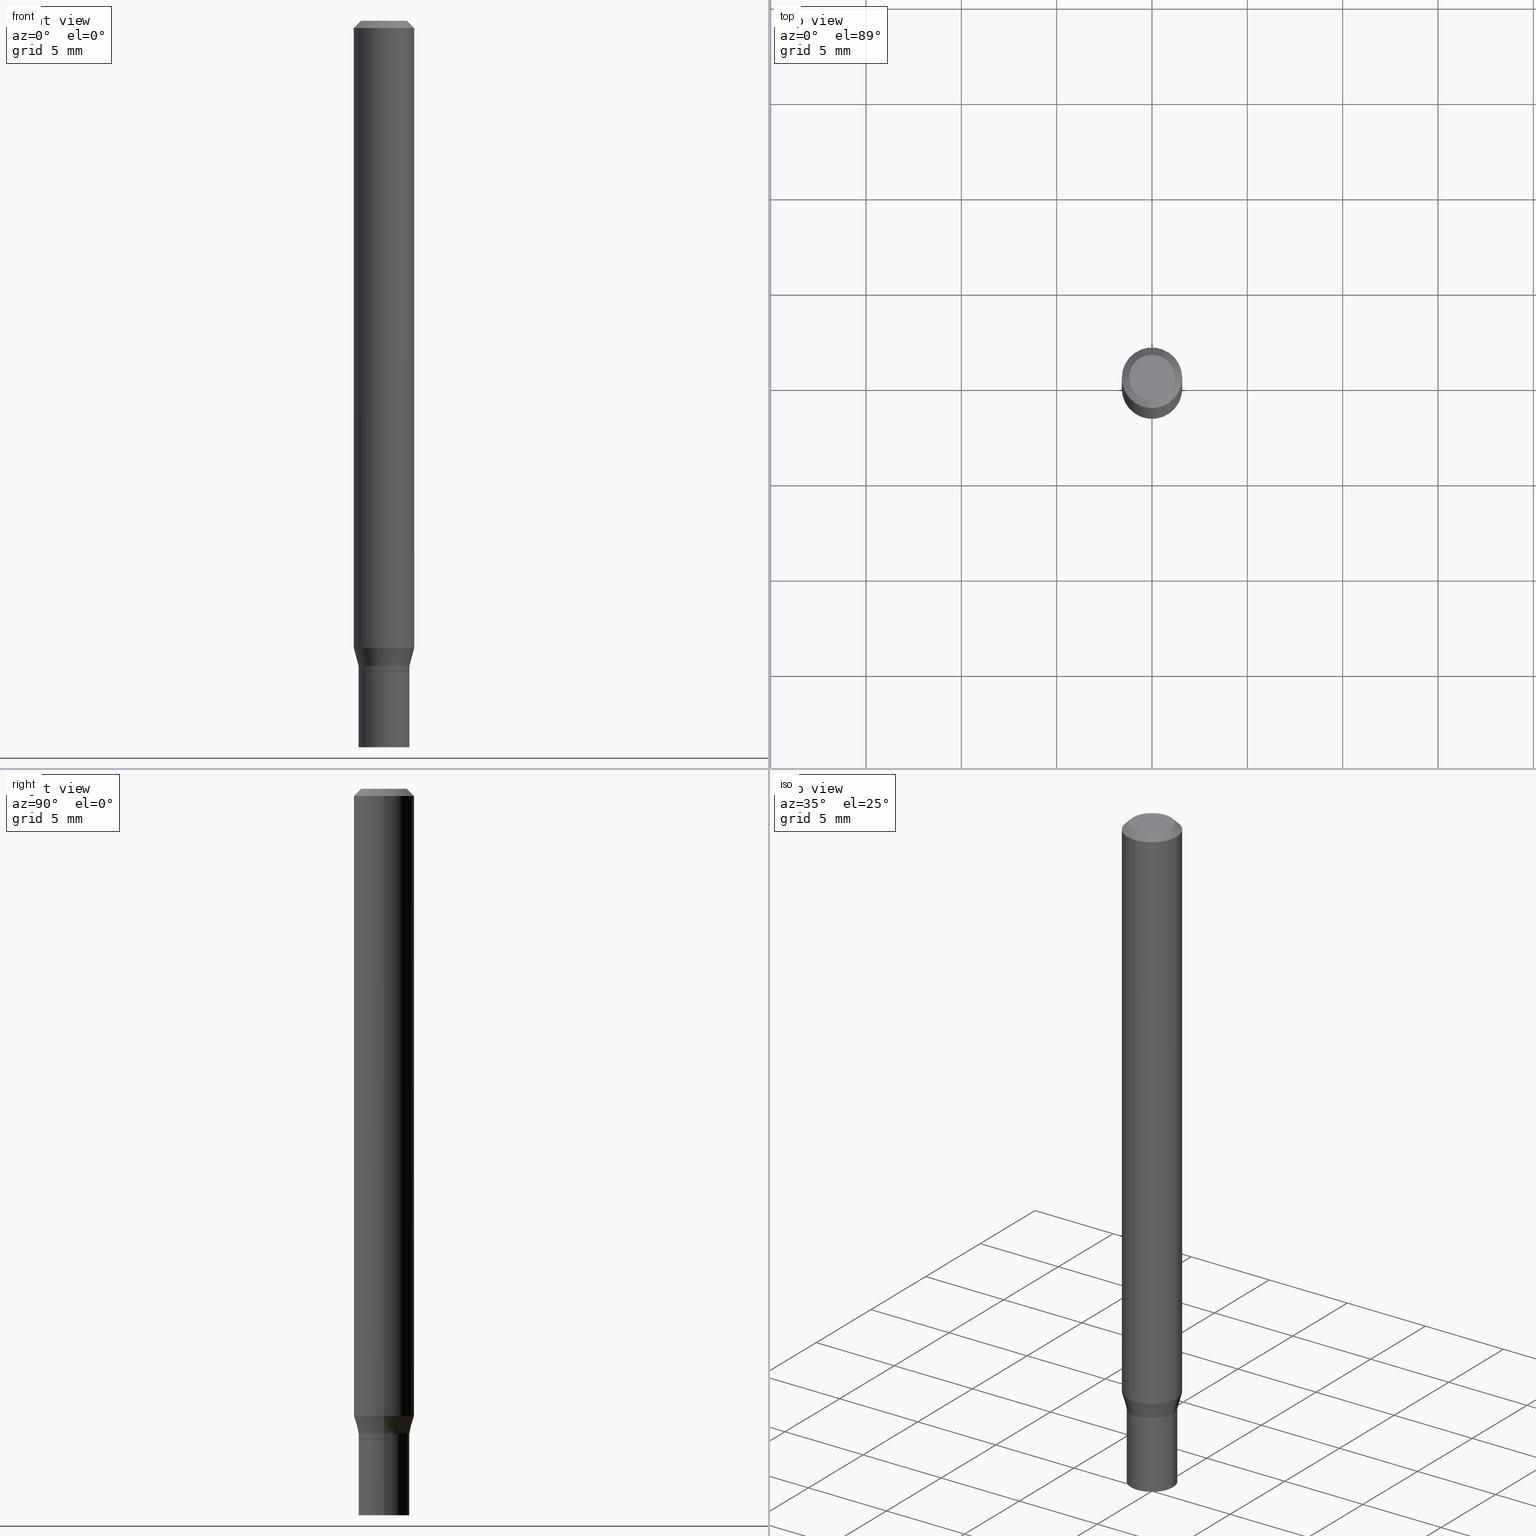
[diagram: canonical four-view strip — front | top / right | iso, engineering-drawing reading convention]
A machine part, canonical four-view strip (front | top / right | iso — engineering-drawing reading convention). The complete STEP part file that produces these views, byte-faithful:
ISO-10303-21;
HEADER;
FILE_DESCRIPTION (( 'STEP AP203' ),
    '1' );
FILE_NAME ('02432.STEP',
    '2024-03-18T20:34:04',
    ( '' ),
    ( '' ),
    'SwSTEP 2.0',
    'SolidWorks 2023',
    '' );
FILE_SCHEMA (( 'CONFIG_CONTROL_DESIGN' ));
ENDSEC;

DATA;
#1 = DIRECTION ( 'NONE',  ( -2.445468806185136597E-29, 3.491481338843145583E-15, 1.000000000000000000 ) ) ;
#2 = DIRECTION ( 'NONE',  ( -2.445468806185136877E-29, 3.491481338843145188E-15, 1.000000000000000000 ) ) ;
#3 = CIRCLE ( 'NONE', #399, 0.05249999999999992867 ) ;
#4 = ORIENTED_EDGE ( 'NONE', *, *, #116, .T. ) ;
#5 = ADVANCED_FACE ( 'NONE', ( #97 ), #141, .T. ) ;
#6 = CARTESIAN_POINT ( 'NONE',  ( 3.668203209277705088E-31, -5.237222008264718399E-17, -0.01499999999999999944 ) ) ;
#7 = DIRECTION ( 'NONE',  ( 1.000000000000000000, -6.982962677686261189E-15, 0.000000000000000000 ) ) ;
#8 = CYLINDRICAL_SURFACE ( 'NONE', #14, 0.06250000000000000000 ) ;
#9 = FACE_OUTER_BOUND ( 'NONE', #178, .T. ) ;
#10 = ORIENTED_EDGE ( 'NONE', *, *, #209, .F. ) ;
#11 = DIRECTION ( 'NONE',  ( -2.445468806185136597E-29, 3.491481338843145583E-15, 1.000000000000000000 ) ) ;
#12 = ORIENTED_EDGE ( 'NONE', *, *, #263, .T. ) ;
#13 = CARTESIAN_POINT ( 'NONE',  ( 3.668203209277705088E-31, -5.237222008264718399E-17, -0.01499999999999999944 ) ) ;
#14 = AXIS2_PLACEMENT_3D ( 'NONE', #298, #445, #416 ) ;
#15 = CIRCLE ( 'NONE', #378, 0.05199999999999999067 ) ;
#16 = DIRECTION ( 'NONE',  ( -2.445468806185136597E-29, 3.491481338843145583E-15, 1.000000000000000000 ) ) ;
#17 = ORIENTED_EDGE ( 'NONE', *, *, #55, .F. ) ;
#18 = CARTESIAN_POINT ( 'NONE',  ( 3.316907271900976096E-16, 0.04749999999999999362, -2.653275547260257586E-16 ) ) ;
#19 = ORIENTED_EDGE ( 'NONE', *, *, #361, .F. ) ;
#20 = CARTESIAN_POINT ( 'NONE',  ( 3.257364449838602072E-29, -4.650653143339070101E-15, -1.332000000000000073 ) ) ;
#21 = DIMENSIONAL_EXPONENTS ( 1.000000000000000000, 0.000000000000000000, 0.000000000000000000, 0.000000000000000000, 0.000000000000000000, 0.000000000000000000, 0.000000000000000000 ) ;
#22 = DIRECTION ( 'NONE',  ( -1.000000000000000000, 6.982962677686266711E-15, 0.000000000000000000 ) ) ;
#23 = DIRECTION ( 'NONE',  ( -1.000000000000000000, 6.982962677686265922E-15, -4.876176775795935793E-29 ) ) ;
#24 = CALENDAR_DATE ( 2024, 18, 3 ) ;
#25 = CIRCLE ( 'NONE', #295, 0.06250000000000000000 ) ;
#26 = DIRECTION ( 'NONE',  ( 1.000000000000000000, -6.982962677686266711E-15, 4.876176775795935793E-29 ) ) ;
#27 = CARTESIAN_POINT ( 'NONE',  ( 3.666055405785617499E-16, 0.05249999999999530736, -1.342000000000000304 ) ) ;
#28 = PERSON ( 'UNSPECIFIED', 'UNSPECIFIED', 'UNSPECIFIED', ('UNSPECIFIED'), ('UNSPECIFIED'), ('UNSPECIFIED') ) ;
#29 = CARTESIAN_POINT ( 'NONE',  ( 3.281819137900453057E-29, -4.685567956727500961E-15, -1.342000000000000082 ) ) ;
#30 = EDGE_CURVE ( 'NONE', #112, #270, #57, .T. ) ;
#31 = CC_DESIGN_PERSON_AND_ORGANIZATION_ASSIGNMENT ( #388, #34, ( #254 ) ) ;
#32 = PERSON_AND_ORGANIZATION ( #28, #44 ) ;
#33 = ORIENTED_EDGE ( 'NONE', *, *, #331, .F. ) ;
#34 = PERSON_AND_ORGANIZATION_ROLE ( 'creator' ) ;
#35 = CIRCLE ( 'NONE', #222, 0.05249999999999999806 ) ;
#36 = CARTESIAN_POINT ( 'NONE',  ( 3.280596403497361377E-29, -4.683822216058081035E-15, -1.341500000000000137 ) ) ;
#37 = ORIENTED_EDGE ( 'NONE', *, *, #439, .F. ) ;
#38 = ORIENTED_EDGE ( 'NONE', *, *, #144, .T. ) ;
#39 = EDGE_CURVE ( 'NONE', #112, #311, #52, .T. ) ;
#40 = CALENDAR_DATE ( 2024, 18, 3 ) ;
#41 = CARTESIAN_POINT ( 'NONE',  ( 0.05249999999999999806, -5.603827548843247337E-15, -1.500000000000000222 ) ) ;
#42 = APPROVAL ( #67, 'UNSPECIFIED' ) ;
#43 = CIRCLE ( 'NONE', #265, 0.05249999999999991479 ) ;
#44 = ORGANIZATION ( 'UNSPECIFIED', 'UNSPECIFIED', '' ) ;
#45 = EDGE_CURVE ( 'NONE', #215, #151, #194, .T. ) ;
#46 = DIRECTION ( 'NONE',  ( 2.438088387897960049E-29, -3.491481338843145188E-15, -1.000000000000000000 ) ) ;
#47 = CIRCLE ( 'NONE', #423, 0.05249999999999999806 ) ;
#48 = CARTESIAN_POINT ( 'NONE',  ( 0.05249999999999991479, -3.666055405785284205E-16, 2.559992807292862157E-30 ) ) ;
#49 = ORIENTED_EDGE ( 'NONE', *, *, #69, .F. ) ;
#50 = FACE_OUTER_BOUND ( 'NONE', #182, .T. ) ;
#51 = CARTESIAN_POINT ( 'NONE',  ( 3.281819137900453057E-29, -4.685567956727500961E-15, -1.342000000000000082 ) ) ;
#52 = LINE ( 'NONE', #302, #251 ) ;
#53 = EDGE_LOOP ( 'NONE', ( #326, #299 ) ) ;
#54 = CYLINDRICAL_SURFACE ( 'NONE', #137, 0.05249999999999991479 ) ;
#55 = EDGE_CURVE ( 'NONE', #282, #311, #227, .T. ) ;
#56 = DIRECTION ( 'NONE',  ( 1.000000000000000000, -6.982962677686265922E-15, 4.876176775795935232E-29 ) ) ;
#57 = CIRCLE ( 'NONE', #398, 0.05199999999999999067 ) ;
#58 = CC_DESIGN_APPROVAL ( #42, ( #448 ) ) ;
#59 = CARTESIAN_POINT ( 'NONE',  ( -0.04749999999999999362, 3.578768372314206562E-16, -1.989643822619551895E-16 ) ) ;
#60 = FACE_OUTER_BOUND ( 'NONE', #53, .T. ) ;
#61 = EDGE_LOOP ( 'NONE', ( #89, #4, #38, #257 ) ) ;
#62 =( NAMED_UNIT ( * ) SI_UNIT ( $, .STERADIAN. ) SOLID_ANGLE_UNIT ( ) );
#63 = ADVANCED_FACE ( 'NONE', ( #333 ), #377, .T. ) ;
#64 = COORDINATED_UNIVERSAL_TIME_OFFSET ( 5, 0, .BEHIND. ) ;
#65 = AXIS2_PLACEMENT_3D ( 'NONE', #6, #297, #441 ) ;
#66 = LOCAL_TIME ( 16, 34, 4.000000000000000000, #64 ) ;
#67 = APPROVAL_STATUS ( 'not_yet_approved' ) ;
#68 = ORIENTED_EDGE ( 'NONE', *, *, #188, .F. ) ;
#69 = EDGE_CURVE ( 'NONE', #431, #287, #152, .T. ) ;
#70 = CARTESIAN_POINT ( 'NONE',  ( 3.281819137900453057E-29, -4.685567956727500961E-15, -1.342000000000000082 ) ) ;
#71 = PERSON_AND_ORGANIZATION_ROLE ( 'creator' ) ;
#72 = VERTEX_POINT ( 'NONE', #267 ) ;
#73 = CIRCLE ( 'NONE', #328, 0.05249999999999999806 ) ;
#74 = VECTOR ( 'NONE', #344, 39.37007874015748143 ) ;
#75 = EDGE_CURVE ( 'NONE', #270, #282, #153, .T. ) ;
#76 = SHAPE_DEFINITION_REPRESENTATION ( #189, #160 ) ;
#77 = ORIENTED_EDGE ( 'NONE', *, *, #242, .F. ) ;
#78 = ADVANCED_FACE ( 'NONE', ( #336 ), #8, .T. ) ;
#79 = PLANE ( 'NONE',  #335 ) ;
#80 = ADVANCED_FACE ( 'NONE', ( #94 ), #173, .F. ) ;
#81 = DIRECTION ( 'NONE',  ( -0.7071067811865522357, 2.468850131082306364E-15, -0.7071067811865427988 ) ) ;
#82 = DIRECTION ( 'NONE',  ( -2.445468806185136597E-29, 3.491481338843145583E-15, 1.000000000000000000 ) ) ;
#83 = ORIENTED_EDGE ( 'NONE', *, *, #30, .T. ) ;
#84 = CONICAL_SURFACE ( 'NONE', #413, 0.05249999999999992867, 0.2617993877991501295 ) ;
#85 = ORIENTED_EDGE ( 'NONE', *, *, #150, .T. ) ;
#86 = LINE ( 'NONE', #274, #130 ) ;
#87 = CARTESIAN_POINT ( 'NONE',  ( -0.05249999999999992867, -4.277618207065018355E-15, -1.332000000000000073 ) ) ;
#88 = DIRECTION ( 'NONE',  ( -2.445468806185136597E-29, 3.491481338843145583E-15, 1.000000000000000000 ) ) ;
#89 = ORIENTED_EDGE ( 'NONE', *, *, #330, .F. ) ;
#90 = DIRECTION ( 'NONE',  ( -2.445468806185136597E-29, 3.491481338843145583E-15, 1.000000000000000000 ) ) ;
#91 = FACE_OUTER_BOUND ( 'NONE', #315, .T. ) ;
#92 = ORIENTED_EDGE ( 'NONE', *, *, #188, .T. ) ;
#93 = DIRECTION ( 'NONE',  ( -2.445468806185136597E-29, 3.491481338843145583E-15, 1.000000000000000000 ) ) ;
#94 = FACE_OUTER_BOUND ( 'NONE', #105, .T. ) ;
#95 = AXIS2_PLACEMENT_3D ( 'NONE', #70, #221, #259 ) ;
#96 = DIRECTION ( 'NONE',  ( -0.2588190451025214611, 5.211531920934551042E-15, 0.9659258262890682012 ) ) ;
#97 = FACE_OUTER_BOUND ( 'NONE', #321, .T. ) ;
#98 = MECHANICAL_CONTEXT ( 'NONE', #121, 'mechanical' ) ;
#99 = FACE_OUTER_BOUND ( 'NONE', #434, .T. ) ;
#100 = DIRECTION ( 'NONE',  ( -2.438088387897960049E-29, 3.491481338843145188E-15, 1.000000000000000000 ) ) ;
#101 = APPLICATION_CONTEXT ( 'configuration controlled 3d designs of mechanical parts and assemblies' ) ;
#102 = AXIS2_PLACEMENT_3D ( 'NONE', #206, #342, #305 ) ;
#103 = APPROVAL_ROLE ( '' ) ;
#104 = CC_DESIGN_APPROVAL ( #459, ( #433 ) ) ;
#105 = EDGE_LOOP ( 'NONE', ( #329, #341 ) ) ;
#106 = PERSON_AND_ORGANIZATION_ROLE ( 'classification_officer' ) ;
#107 = EDGE_CURVE ( 'NONE', #291, #223, #47, .T. ) ;
#108 = LENGTH_MEASURE_WITH_UNIT ( LENGTH_MEASURE( 0.02539999999999999897 ), #248 );
#109 = ORIENTED_EDGE ( 'NONE', *, *, #233, .F. ) ;
#110 = ORIENTED_EDGE ( 'NONE', *, *, #107, .F. ) ;
#111 = FACE_OUTER_BOUND ( 'NONE', #284, .T. ) ;
#112 = VERTEX_POINT ( 'NONE', #303 ) ;
#113 = CLOSED_SHELL ( 'NONE', ( #294, #196, #63, #241, #346, #301, #78, #373, #268, #462, #228, #340 ) ) ;
#114 = APPROVAL_ROLE ( '' ) ;
#115 = ORIENTED_EDGE ( 'NONE', *, *, #435, .F. ) ;
#116 = EDGE_CURVE ( 'NONE', #118, #205, #348, .T. ) ;
#117 = APPROVAL_DATE_TIME ( #195, #459 ) ;
#118 = VERTEX_POINT ( 'NONE', #327 ) ;
#119 = AXIS2_PLACEMENT_3D ( 'NONE', #13, #90, #309 ) ;
#120 = LOCAL_TIME ( 16, 34, 4.000000000000000000, #181 ) ;
#121 = APPLICATION_CONTEXT ( 'configuration controlled 3d designs of mechanical parts and assemblies' ) ;
#122 = CARTESIAN_POINT ( 'NONE',  ( 3.668203209277705088E-31, -5.237222008264718399E-17, -0.01499999999999999944 ) ) ;
#123 = VERTEX_POINT ( 'NONE', #279 ) ;
#124 = ADVANCED_FACE ( 'NONE', ( #99 ), #139, .T. ) ;
#125 = CARTESIAN_POINT ( 'NONE',  ( 0.06250000000000000000, -4.364351673553916694E-16, 3.047610484872459871E-30 ) ) ;
#126 = EDGE_LOOP ( 'NONE', ( #374, #92 ) ) ;
#127 = DIRECTION ( 'NONE',  ( 1.000000000000000000, -6.982962677686266711E-15, 4.876176775795935793E-29 ) ) ;
#128 = CARTESIAN_POINT ( 'NONE',  ( 0.05249999999999992867, -5.017258683917598472E-15, -1.332000000000000073 ) ) ;
#129 = EDGE_LOOP ( 'NONE', ( #200, #12, #355, #226 ) ) ;
#130 = VECTOR ( 'NONE', #414, 39.37007874015748143 ) ;
#131 = CARTESIAN_POINT ( 'NONE',  ( 3.668203209277705088E-31, -5.237222008264718399E-17, -0.01499999999999999944 ) ) ;
#132 = FACE_OUTER_BOUND ( 'NONE', #368, .T. ) ;
#133 = DIRECTION ( 'NONE',  ( 2.438088387897960049E-29, -3.491481338843145188E-15, -1.000000000000000000 ) ) ;
#134 = CARTESIAN_POINT ( 'NONE',  ( 3.576687321579069994E-29, -5.368277968210015545E-15, -1.500000000000000222 ) ) ;
#135 = ORIENTED_EDGE ( 'NONE', *, *, #415, .T. ) ;
#136 = CARTESIAN_POINT ( 'NONE',  ( -0.05249999999999999806, 3.730349362740525838E-16, -2.582440922383825311E-30 ) ) ;
#137 = AXIS2_PLACEMENT_3D ( 'NONE', #300, #161, #127 ) ;
#138 = DIRECTION ( 'NONE',  ( 2.445468806185136597E-29, -3.491481338843145583E-15, -1.000000000000000000 ) ) ;
#139 = CYLINDRICAL_SURFACE ( 'NONE', #244, 0.05249999999999999806 ) ;
#140 = PERSON_AND_ORGANIZATION ( #28, #44 ) ;
#141 = CYLINDRICAL_SURFACE ( 'NONE', #285, 0.05249999999999999806 ) ;
#142 = CONICAL_SURFACE ( 'NONE', #314, 0.05199999999999999067, 0.7853981633974739252 ) ;
#143 = ORIENTED_EDGE ( 'NONE', *, *, #45, .F. ) ;
#144 = EDGE_CURVE ( 'NONE', #205, #215, #232, .T. ) ;
#145 = DIRECTION ( 'NONE',  ( 1.000000000000000000, -6.982962677686268288E-15, 0.000000000000000000 ) ) ;
#146 = CALENDAR_DATE ( 2024, 18, 3 ) ;
#147 = MANIFOLD_SOLID_BREP ( 'Body-Move/Copy2[1]', #363 ) ;
#148 = EDGE_LOOP ( 'NONE', ( #115, #33, #438, #85 ) ) ;
#149 = AXIS2_PLACEMENT_3D ( 'NONE', #371, #239, #356 ) ;
#150 = EDGE_CURVE ( 'NONE', #287, #151, #260, .T. ) ;
#151 = VERTEX_POINT ( 'NONE', #367 ) ;
#152 = LINE ( 'NONE', #293, #198 ) ;
#153 = LINE ( 'NONE', #407, #454 ) ;
#154 = AXIS2_PLACEMENT_3D ( 'NONE', #201, #16, #169 ) ;
#155 = LOCAL_TIME ( 16, 34, 4.000000000000000000, #288 ) ;
#156 = ORIENTED_EDGE ( 'NONE', *, *, #233, .T. ) ;
#157 = PERSON_AND_ORGANIZATION ( #28, #44 ) ;
#158 = DIRECTION ( 'NONE',  ( 1.000000000000000000, -6.982962677686268288E-15, 0.000000000000000000 ) ) ;
#159 = ORIENTED_EDGE ( 'NONE', *, *, #170, .F. ) ;
#160 = ADVANCED_BREP_SHAPE_REPRESENTATION ( '02432', ( #147, #304, #245 ), #307 ) ;
#161 = DIRECTION ( 'NONE',  ( -2.445468806185136597E-29, 3.491481338843145583E-15, 1.000000000000000000 ) ) ;
#162 = CC_DESIGN_DATE_AND_TIME_ASSIGNMENT ( #218, #351, ( #433 ) ) ;
#163 = CARTESIAN_POINT ( 'NONE',  ( 3.281819137900453057E-29, -4.685567956727500961E-15, -1.342000000000000082 ) ) ;
#164 = VERTEX_POINT ( 'NONE', #370 ) ;
#165 = DIRECTION ( 'NONE',  ( -2.445468806185136597E-29, 3.491481338843145583E-15, 1.000000000000000000 ) ) ;
#166 = DIRECTION ( 'NONE',  ( 1.000000000000000000, -6.982962677686262766E-15, 0.000000000000000000 ) ) ;
#167 = EDGE_CURVE ( 'NONE', #217, #72, #35, .T. ) ;
#168 = CIRCLE ( 'NONE', #154, 0.04749999999999999362 ) ;
#169 = DIRECTION ( 'NONE',  ( 1.000000000000000000, -6.982962677686267499E-15, 4.852736867747366768E-29 ) ) ;
#170 = EDGE_CURVE ( 'NONE', #223, #291, #73, .T. ) ;
#171 = ORIENTED_EDGE ( 'NONE', *, *, #75, .F. ) ;
#172 = CARTESIAN_POINT ( 'NONE',  ( 3.281819137900453057E-29, -4.685567956727500961E-15, -1.342000000000000082 ) ) ;
#173 = PLANE ( 'NONE',  #176 ) ;
#174 = CC_DESIGN_PERSON_AND_ORGANIZATION_ASSIGNMENT ( #32, #71, ( #448 ) ) ;
#175 = CARTESIAN_POINT ( 'NONE',  ( -0.06250000000000000000, -1.842271543109589873E-15, -0.01499999999999999944 ) ) ;
#176 = AXIS2_PLACEMENT_3D ( 'NONE', #27, #133, #23 ) ;
#177 = VECTOR ( 'NONE', #444, 39.37007874015748143 ) ;
#178 = EDGE_LOOP ( 'NONE', ( #319, #411, #77, #262 ) ) ;
#179 = DATE_AND_TIME ( #24, #323 ) ;
#180 = CARTESIAN_POINT ( 'NONE',  ( 0.000000000000000000, 0.000000000000000000, 0.000000000000000000 ) ) ;
#181 = COORDINATED_UNIVERSAL_TIME_OFFSET ( 5, 0, .BEHIND. ) ;
#182 = EDGE_LOOP ( 'NONE', ( #425, #357, #354, #420 ) ) ;
#183 = CONICAL_SURFACE ( 'NONE', #447, 0.05249999999999992867, 0.2617993877991501295 ) ;
#184 = DIRECTION ( 'NONE',  ( 1.000000000000000000, -6.982962677686267499E-15, 4.852736867747366768E-29 ) ) ;
#185 = ORIENTED_EDGE ( 'NONE', *, *, #435, .T. ) ;
#186 = CARTESIAN_POINT ( 'NONE',  ( -0.05249999999999999806, -4.588360046222057034E-15, -1.342000000000000082 ) ) ;
#187 = FACE_OUTER_BOUND ( 'NONE', #338, .T. ) ;
#188 = EDGE_CURVE ( 'NONE', #123, #431, #412, .T. ) ;
#189 = PRODUCT_DEFINITION_SHAPE ( 'NONE', 'NONE',  #254 ) ;
#190 = ORIENTED_EDGE ( 'NONE', *, *, #39, .T. ) ;
#191 = APPROVAL ( #289, 'UNSPECIFIED' ) ;
#192 = LINE ( 'NONE', #359, #213 ) ;
#193 = CARTESIAN_POINT ( 'NONE',  ( 0.06250000000000000000, -4.956784453192048385E-15, -1.294679491924311199 ) ) ;
#194 = LINE ( 'NONE', #125, #429 ) ;
#195 = DATE_AND_TIME ( #40, #286 ) ;
#196 = ADVANCED_FACE ( 'NONE', ( #111 ), #230, .T. ) ;
#197 = DIRECTION ( 'NONE',  ( 0.7071067811865656694, -2.468850131082446387E-15, 0.7071067811865294761 ) ) ;
#198 = VECTOR ( 'NONE', #81, 39.37007874015748143 ) ;
#199 = AXIS2_PLACEMENT_3D ( 'NONE', #29, #100, #395 ) ;
#200 = ORIENTED_EDGE ( 'NONE', *, *, #220, .F. ) ;
#201 = CARTESIAN_POINT ( 'NONE',  ( 4.865611903635008365E-45, -6.946804277620623666E-31, -1.989643822619527736E-16 ) ) ;
#202 = EDGE_LOOP ( 'NONE', ( #159, #110 ) ) ;
#203 = CARTESIAN_POINT ( 'NONE',  ( 0.05249999999999991479, -5.050427756636607829E-15, -1.341500000000000137 ) ) ;
#204 = DIRECTION ( 'NONE',  ( -0.7071067811865656694, 7.493145998870420424E-15, 0.7071067811865294761 ) ) ;
#205 = VERTEX_POINT ( 'NONE', #397 ) ;
#206 = CARTESIAN_POINT ( 'NONE',  ( 0.000000000000000000, 0.000000000000000000, 0.000000000000000000 ) ) ;
#207 = CIRCLE ( 'NONE', #119, 0.06250000000000000000 ) ;
#208 = LINE ( 'NONE', #278, #74 ) ;
#209 = EDGE_CURVE ( 'NONE', #311, #282, #43, .T. ) ;
#210 = FACE_OUTER_BOUND ( 'NONE', #61, .T. ) ;
#211 = CARTESIAN_POINT ( 'NONE',  ( 3.668203209277704895E-29, -5.237222008264718177E-15, -1.500000000000000222 ) ) ;
#212 = DATE_AND_TIME ( #146, #66 ) ;
#213 = VECTOR ( 'NONE', #2, 39.37007874015748143 ) ;
#214 = ORIENTED_EDGE ( 'NONE', *, *, #394, .T. ) ;
#215 = VERTEX_POINT ( 'NONE', #193 ) ;
#216 = CALENDAR_DATE ( 2024, 18, 3 ) ;
#217 = VERTEX_POINT ( 'NONE', #186 ) ;
#218 = DATE_AND_TIME ( #256, #155 ) ;
#219 = ORIENTED_EDGE ( 'NONE', *, *, #170, .T. ) ;
#220 = EDGE_CURVE ( 'NONE', #164, #287, #192, .T. ) ;
#221 = DIRECTION ( 'NONE',  ( -2.445468806185136597E-29, 3.491481338843145583E-15, 1.000000000000000000 ) ) ;
#222 = AXIS2_PLACEMENT_3D ( 'NONE', #51, #82, #158 ) ;
#223 = VERTEX_POINT ( 'NONE', #41 ) ;
#224 = CC_DESIGN_APPROVAL ( #191, ( #254 ) ) ;
#225 = CC_DESIGN_PERSON_AND_ORGANIZATION_ASSIGNMENT ( #320, #466, ( #448 ) ) ;
#226 = ORIENTED_EDGE ( 'NONE', *, *, #150, .F. ) ;
#227 = CIRCLE ( 'NONE', #322, 0.05249999999999991479 ) ;
#228 = ADVANCED_FACE ( 'NONE', ( #187 ), #142, .T. ) ;
#229 = DIRECTION ( 'NONE',  ( 1.000000000000000000, -6.982962677686265922E-15, 4.876176775795935793E-29 ) ) ;
#230 = CONICAL_SURFACE ( 'NONE', #95, 0.05199999999999999067, 0.7853981633974739252 ) ;
#231 = VECTOR ( 'NONE', #376, 39.37007874015748143 ) ;
#232 = LINE ( 'NONE', #128, #405 ) ;
#233 = EDGE_CURVE ( 'NONE', #151, #287, #207, .T. ) ;
#234 = CARTESIAN_POINT ( 'NONE',  ( 3.281819137900453057E-29, -4.685567956727500961E-15, -1.342000000000000082 ) ) ;
#235 = DIRECTION ( 'NONE',  ( -2.445468806185136597E-29, 3.491481338843145583E-15, 1.000000000000000000 ) ) ;
#236 = CARTESIAN_POINT ( 'NONE',  ( 3.257364449838602072E-29, -4.650653143339070101E-15, -1.332000000000000073 ) ) ;
#237 = DIRECTION ( 'NONE',  ( -2.445468806185136597E-29, 3.491481338843145583E-15, 1.000000000000000000 ) ) ;
#238 = CARTESIAN_POINT ( 'NONE',  ( 0.000000000000000000, 0.000000000000000000, 0.000000000000000000 ) ) ;
#239 = DIRECTION ( 'NONE',  ( -2.445468806185136597E-29, 3.491481338843145583E-15, 1.000000000000000000 ) ) ;
#240 = LINE ( 'NONE', #136, #231 ) ;
#241 = ADVANCED_FACE ( 'NONE', ( #132 ), #450, .T. ) ;
#242 = EDGE_CURVE ( 'NONE', #215, #164, #25, .T. ) ;
#243 = CC_DESIGN_PERSON_AND_ORGANIZATION_ASSIGNMENT ( #430, #106, ( #433 ) ) ;
#244 = AXIS2_PLACEMENT_3D ( 'NONE', #456, #237, #362 ) ;
#245 = AXIS2_PLACEMENT_3D ( 'NONE', #180, #318, #250 ) ;
#246 = CARTESIAN_POINT ( 'NONE',  ( 0.05249999999999999806, -3.666055405785289629E-16, 2.559992807292866011E-30 ) ) ;
#247 = ORIENTED_EDGE ( 'NONE', *, *, #242, .T. ) ;
#248 =( LENGTH_UNIT ( ) NAMED_UNIT ( * ) SI_UNIT ( $, .METRE. ) );
#249 = CARTESIAN_POINT ( 'NONE',  ( 0.05199999999999999067, -5.048682015967186325E-15, -1.342000000000000082 ) ) ;
#250 = DIRECTION ( 'NONE',  ( 1.000000000000000000, 0.000000000000000000, 0.000000000000000000 ) ) ;
#251 = VECTOR ( 'NONE', #204, 39.37007874015748143 ) ;
#252 = APPROVAL_PERSON_ORGANIZATION ( #157, #459, #114 ) ;
#253 = APPROVAL_DATE_TIME ( #212, #191 ) ;
#254 = PRODUCT_DEFINITION ( 'UNKNOWN', '', #448, #386 ) ;
#255 = CARTESIAN_POINT ( 'NONE',  ( 0.000000000000000000, 0.000000000000000000, 0.000000000000000000 ) ) ;
#256 = CALENDAR_DATE ( 2024, 18, 3 ) ;
#257 = ORIENTED_EDGE ( 'NONE', *, *, #263, .F. ) ;
#258 = UNCERTAINTY_MEASURE_WITH_UNIT (LENGTH_MEASURE( 1.000000000000000082E-05 ), #385, 'distance_accuracy_value', 'NONE');
#259 = DIRECTION ( 'NONE',  ( 1.000000000000000000, -6.982962677686258822E-15, 0.000000000000000000 ) ) ;
#260 = CIRCLE ( 'NONE', #343, 0.06250000000000000000 ) ;
#261 = CARTESIAN_POINT ( 'NONE',  ( 3.281819137900453057E-29, -4.685567956727500961E-15, -1.342000000000000082 ) ) ;
#262 = ORIENTED_EDGE ( 'NONE', *, *, #144, .F. ) ;
#263 = EDGE_CURVE ( 'NONE', #164, #215, #387, .T. ) ;
#264 = DIRECTION ( 'NONE',  ( 1.000000000000000000, -6.982962677686262766E-15, 0.000000000000000000 ) ) ;
#265 = AXIS2_PLACEMENT_3D ( 'NONE', #36, #325, #403 ) ;
#266 = EDGE_LOOP ( 'NONE', ( #68, #185, #156, #49 ) ) ;
#267 = CARTESIAN_POINT ( 'NONE',  ( 0.05249999999999999806, -5.052173497306030121E-15, -1.342000000000000082 ) ) ;
#268 = ADVANCED_FACE ( 'NONE', ( #404 ), #79, .F. ) ;
#269 = ORIENTED_EDGE ( 'NONE', *, *, #394, .F. ) ;
#270 = VERTEX_POINT ( 'NONE', #249 ) ;
#271 = DIRECTION ( 'NONE',  ( -2.445468806185136597E-29, 3.491481338843145583E-15, 1.000000000000000000 ) ) ;
#272 = AXIS2_PLACEMENT_3D ( 'NONE', #238, #391, #26 ) ;
#273 = LINE ( 'NONE', #246, #177 ) ;
#274 = CARTESIAN_POINT ( 'NONE',  ( -0.05249999999999991479, 3.730349362740519921E-16, -2.582440922383821458E-30 ) ) ;
#275 = ORIENTED_EDGE ( 'NONE', *, *, #55, .T. ) ;
#276 = CYLINDRICAL_SURFACE ( 'NONE', #102, 0.05249999999999991479 ) ;
#277 = AXIS2_PLACEMENT_3D ( 'NONE', #131, #138, #22 ) ;
#278 = CARTESIAN_POINT ( 'NONE',  ( 0.06250000000000000000, -4.811533449433679005E-16, -0.01499999999999999944 ) ) ;
#279 = CARTESIAN_POINT ( 'NONE',  ( 0.04749999999999999362, -4.035134999187581581E-16, -1.989643822619502098E-16 ) ) ;
#280 = PRODUCT_RELATED_PRODUCT_CATEGORY ( 'detail', '', ( #442 ) ) ;
#281 = DIRECTION ( 'NONE',  ( -1.000000000000000000, 6.982962677686265922E-15, -4.876176775795935793E-29 ) ) ;
#282 = VERTEX_POINT ( 'NONE', #203 ) ;
#283 =( NAMED_UNIT ( * ) PLANE_ANGLE_UNIT ( ) SI_UNIT ( $, .RADIAN. ) );
#284 = EDGE_LOOP ( 'NONE', ( #135, #190, #17, #171 ) ) ;
#285 = AXIS2_PLACEMENT_3D ( 'NONE', #255, #393, #56 ) ;
#286 = LOCAL_TIME ( 16, 34, 4.000000000000000000, #436 ) ;
#287 = VERTEX_POINT ( 'NONE', #175 ) ;
#288 = COORDINATED_UNIVERSAL_TIME_OFFSET ( 5, 0, .BEHIND. ) ;
#289 = APPROVAL_STATUS ( 'not_yet_approved' ) ;
#290 = CIRCLE ( 'NONE', #446, 0.05249999999999999806 ) ;
#291 = VERTEX_POINT ( 'NONE', #453 ) ;
#292 = EDGE_CURVE ( 'NONE', #72, #217, #290, .T. ) ;
#293 = CARTESIAN_POINT ( 'NONE',  ( -0.06250000000000000000, 3.840629472727444916E-16, -0.01499999999999999944 ) ) ;
#294 = ADVANCED_FACE ( 'NONE', ( #91 ), #276, .T. ) ;
#295 = AXIS2_PLACEMENT_3D ( 'NONE', #458, #461, #166 ) ;
#296 = CONICAL_SURFACE ( 'NONE', #277, 0.06250000000000000000, 0.7853981633974549403 ) ;
#297 = DIRECTION ( 'NONE',  ( 2.445468806185136597E-29, -3.491481338843145583E-15, -1.000000000000000000 ) ) ;
#298 = CARTESIAN_POINT ( 'NONE',  ( 0.000000000000000000, 0.000000000000000000, 0.000000000000000000 ) ) ;
#299 = ORIENTED_EDGE ( 'NONE', *, *, #30, .F. ) ;
#300 = CARTESIAN_POINT ( 'NONE',  ( 0.000000000000000000, 0.000000000000000000, 0.000000000000000000 ) ) ;
#301 = ADVANCED_FACE ( 'NONE', ( #210 ), #183, .T. ) ;
#302 = CARTESIAN_POINT ( 'NONE',  ( -0.05199999999999999067, -4.316085734132249325E-15, -1.342000000000000082 ) ) ;
#303 = CARTESIAN_POINT ( 'NONE',  ( -0.05199999999999999067, -4.313436506958138124E-15, -1.342000000000000082 ) ) ;
#304 = MANIFOLD_SOLID_BREP ( 'Body-Move/Copy2[2]', #113 ) ;
#305 = DIRECTION ( 'NONE',  ( 1.000000000000000000, -6.982962677686266711E-15, 4.876176775795935793E-29 ) ) ;
#306 = AXIS2_PLACEMENT_3D ( 'NONE', #419, #88, #264 ) ;
#307 =( GEOMETRIC_REPRESENTATION_CONTEXT ( 3 ) GLOBAL_UNCERTAINTY_ASSIGNED_CONTEXT ( ( #258 ) ) GLOBAL_UNIT_ASSIGNED_CONTEXT ( ( #385, #283, #62 ) ) REPRESENTATION_CONTEXT ( 'NONE', 'WORKASPACE' ) );
#308 = APPROVAL_PERSON_ORGANIZATION ( #460, #191, #103 ) ;
#309 = DIRECTION ( 'NONE',  ( 1.000000000000000000, -6.982962677686266711E-15, 0.000000000000000000 ) ) ;
#310 = DIRECTION ( 'NONE',  ( -2.445468806185136877E-29, 3.491481338843145188E-15, 1.000000000000000000 ) ) ;
#311 = VERTEX_POINT ( 'NONE', #418 ) ;
#312 = LINE ( 'NONE', #48, #364 ) ;
#313 = DIRECTION ( 'NONE',  ( 1.000000000000000000, -6.982962677686259611E-15, 0.000000000000000000 ) ) ;
#314 = AXIS2_PLACEMENT_3D ( 'NONE', #261, #400, #375 ) ;
#315 = EDGE_LOOP ( 'NONE', ( #275, #464, #37, #19 ) ) ;
#316 = DATE_TIME_ROLE ( 'creation_date' ) ;
#317 = CARTESIAN_POINT ( 'NONE',  ( 3.668203209277704895E-29, -5.237222008264718177E-15, -1.500000000000000222 ) ) ;
#318 = DIRECTION ( 'NONE',  ( 0.000000000000000000, 0.000000000000000000, 1.000000000000000000 ) ) ;
#319 = ORIENTED_EDGE ( 'NONE', *, *, #439, .T. ) ;
#320 = PERSON_AND_ORGANIZATION ( #28, #44 ) ;
#321 = EDGE_LOOP ( 'NONE', ( #457, #402, #214, #353 ) ) ;
#322 = AXIS2_PLACEMENT_3D ( 'NONE', #437, #334, #7 ) ;
#323 = LOCAL_TIME ( 16, 34, 4.000000000000000000, #347 ) ;
#324 = DATE_AND_TIME ( #216, #120 ) ;
#325 = DIRECTION ( 'NONE',  ( -2.445468806185136597E-29, 3.491481338843145583E-15, 1.000000000000000000 ) ) ;
#326 = ORIENTED_EDGE ( 'NONE', *, *, #415, .F. ) ;
#327 = CARTESIAN_POINT ( 'NONE',  ( -0.05249999999999992867, -4.176939141525806622E-15, -1.332000000000000073 ) ) ;
#328 = AXIS2_PLACEMENT_3D ( 'NONE', #317, #392, #145 ) ;
#329 = ORIENTED_EDGE ( 'NONE', *, *, #292, .T. ) ;
#330 = EDGE_CURVE ( 'NONE', #118, #164, #452, .T. ) ;
#331 = EDGE_CURVE ( 'NONE', #431, #123, #168, .T. ) ;
#332 = CC_DESIGN_PERSON_AND_ORGANIZATION_ASSIGNMENT ( #428, #349, ( #442 ) ) ;
#333 = FACE_OUTER_BOUND ( 'NONE', #266, .T. ) ;
#334 = DIRECTION ( 'NONE',  ( -2.445468806185136597E-29, 3.491481338843145583E-15, 1.000000000000000000 ) ) ;
#335 = AXIS2_PLACEMENT_3D ( 'NONE', #18, #46, #281 ) ;
#336 = FACE_OUTER_BOUND ( 'NONE', #129, .T. ) ;
#337 = DIRECTION ( 'NONE',  ( 1.000000000000000000, -6.982962677686268288E-15, 0.000000000000000000 ) ) ;
#338 = EDGE_LOOP ( 'NONE', ( #389, #83, #382, #10 ) ) ;
#339 = FACE_OUTER_BOUND ( 'NONE', #202, .T. ) ;
#340 = ADVANCED_FACE ( 'NONE', ( #50 ), #54, .T. ) ;
#341 = ORIENTED_EDGE ( 'NONE', *, *, #167, .T. ) ;
#342 = DIRECTION ( 'NONE',  ( -2.445468806185136597E-29, 3.491481338843145583E-15, 1.000000000000000000 ) ) ;
#343 = AXIS2_PLACEMENT_3D ( 'NONE', #122, #235, #409 ) ;
#344 = DIRECTION ( 'NONE',  ( 0.7071067811865522357, -7.319954787623271823E-15, -0.7071067811865427988 ) ) ;
#345 = PLANE ( 'NONE',  #199 ) ;
#346 = ADVANCED_FACE ( 'NONE', ( #9 ), #84, .T. ) ;
#347 = COORDINATED_UNIVERSAL_TIME_OFFSET ( 5, 0, .BEHIND. ) ;
#348 = CIRCLE ( 'NONE', #149, 0.05249999999999992867 ) ;
#349 = PERSON_AND_ORGANIZATION_ROLE ( 'design_owner' ) ;
#350 = APPROVAL_DATE_TIME ( #324, #42 ) ;
#351 = DATE_TIME_ROLE ( 'classification_date' ) ;
#352 = CARTESIAN_POINT ( 'NONE',  ( 4.865611903635008365E-45, -6.946804277620623666E-31, -1.989643822619527736E-16 ) ) ;
#353 = ORIENTED_EDGE ( 'NONE', *, *, #167, .F. ) ;
#354 = ORIENTED_EDGE ( 'NONE', *, *, #361, .T. ) ;
#355 = ORIENTED_EDGE ( 'NONE', *, *, #45, .T. ) ;
#356 = DIRECTION ( 'NONE',  ( 1.000000000000000000, -6.982962677686259611E-15, 0.000000000000000000 ) ) ;
#357 = ORIENTED_EDGE ( 'NONE', *, *, #209, .T. ) ;
#358 = AXIS2_PLACEMENT_3D ( 'NONE', #352, #1, #184 ) ;
#359 = CARTESIAN_POINT ( 'NONE',  ( -0.06250000000000000000, 4.440892098500626162E-16, -3.074334431409316114E-30 ) ) ;
#360 = APPROVAL_STATUS ( 'not_yet_approved' ) ;
#361 = EDGE_CURVE ( 'NONE', #282, #205, #312, .T. ) ;
#362 = DIRECTION ( 'NONE',  ( 1.000000000000000000, -6.982962677686265922E-15, 4.876176775795935232E-29 ) ) ;
#363 = CLOSED_SHELL ( 'NONE', ( #124, #384, #5, #80 ) ) ;
#364 = VECTOR ( 'NONE', #310, 39.37007874015748143 ) ;
#365 = FACE_OUTER_BOUND ( 'NONE', #148, .T. ) ;
#366 = DIRECTION ( 'NONE',  ( -2.445468806185136877E-29, 3.491481338843145188E-15, 1.000000000000000000 ) ) ;
#367 = CARTESIAN_POINT ( 'NONE',  ( 0.06250000000000000000, -4.888073874380388472E-16, -0.01499999999999999944 ) ) ;
#368 = EDGE_LOOP ( 'NONE', ( #247, #390, #109, #143 ) ) ;
#369 = DIRECTION ( 'NONE',  ( -2.438088387897960049E-29, 3.491481338843145188E-15, 1.000000000000000000 ) ) ;
#370 = CARTESIAN_POINT ( 'NONE',  ( -0.06250000000000000000, -4.076260075986594889E-15, -1.294679491924311199 ) ) ;
#371 = CARTESIAN_POINT ( 'NONE',  ( 3.257364449838602072E-29, -4.650653143339070101E-15, -1.332000000000000073 ) ) ;
#372 = DIRECTION ( 'NONE',  ( 1.000000000000000000, -6.982962677686258822E-15, 0.000000000000000000 ) ) ;
#373 = ADVANCED_FACE ( 'NONE', ( #365 ), #296, .T. ) ;
#374 = ORIENTED_EDGE ( 'NONE', *, *, #331, .T. ) ;
#375 = DIRECTION ( 'NONE',  ( 1.000000000000000000, -6.982962677686258822E-15, 0.000000000000000000 ) ) ;
#376 = DIRECTION ( 'NONE',  ( -2.445468806185136877E-29, 3.491481338843145188E-15, 1.000000000000000000 ) ) ;
#377 = CONICAL_SURFACE ( 'NONE', #65, 0.06250000000000000000, 0.7853981633974549403 ) ;
#378 = AXIS2_PLACEMENT_3D ( 'NONE', #234, #11, #372 ) ;
#379 = DIRECTION ( 'NONE',  ( 1.000000000000000000, -6.982962677686258822E-15, 0.000000000000000000 ) ) ;
#380 = DIRECTION ( 'NONE',  ( 1.000000000000000000, -6.982962677686259611E-15, 0.000000000000000000 ) ) ;
#381 = APPLICATION_PROTOCOL_DEFINITION ( 'international standard', 'config_control_design', 1994, #121 ) ;
#382 = ORIENTED_EDGE ( 'NONE', *, *, #75, .T. ) ;
#383 = DIRECTION ( 'NONE',  ( 1.000000000000000000, -6.982962677686268288E-15, 0.000000000000000000 ) ) ;
#384 = ADVANCED_FACE ( 'NONE', ( #339 ), #451, .F. ) ;
#385 =( CONVERSION_BASED_UNIT ( 'INCH', #108 ) LENGTH_UNIT ( ) NAMED_UNIT ( #21 ) );
#386 = DESIGN_CONTEXT ( 'detailed design', #101, 'design' ) ;
#387 = CIRCLE ( 'NONE', #306, 0.06250000000000000000 ) ;
#388 = PERSON_AND_ORGANIZATION ( #28, #44 ) ;
#389 = ORIENTED_EDGE ( 'NONE', *, *, #39, .F. ) ;
#390 = ORIENTED_EDGE ( 'NONE', *, *, #220, .T. ) ;
#391 = DIRECTION ( 'NONE',  ( -2.445468806185136597E-29, 3.491481338843145583E-15, 1.000000000000000000 ) ) ;
#392 = DIRECTION ( 'NONE',  ( -2.445468806185136597E-29, 3.491481338843145583E-15, 1.000000000000000000 ) ) ;
#393 = DIRECTION ( 'NONE',  ( -2.445468806185136597E-29, 3.491481338843145583E-15, 1.000000000000000000 ) ) ;
#394 = EDGE_CURVE ( 'NONE', #223, #72, #273, .T. ) ;
#395 = DIRECTION ( 'NONE',  ( 1.000000000000000000, -6.982962677686265922E-15, 4.876176775795935793E-29 ) ) ;
#396 = APPROVAL_ROLE ( '' ) ;
#397 = CARTESIAN_POINT ( 'NONE',  ( 0.05249999999999992867, -5.017258683917598472E-15, -1.332000000000000073 ) ) ;
#398 = AXIS2_PLACEMENT_3D ( 'NONE', #163, #93, #379 ) ;
#399 = AXIS2_PLACEMENT_3D ( 'NONE', #20, #422, #380 ) ;
#400 = DIRECTION ( 'NONE',  ( -2.445468806185136597E-29, 3.491481338843145583E-15, 1.000000000000000000 ) ) ;
#401 = ORIENTED_EDGE ( 'NONE', *, *, #292, .F. ) ;
#402 = ORIENTED_EDGE ( 'NONE', *, *, #107, .T. ) ;
#403 = DIRECTION ( 'NONE',  ( 1.000000000000000000, -6.982962677686261189E-15, 0.000000000000000000 ) ) ;
#404 = FACE_OUTER_BOUND ( 'NONE', #126, .T. ) ;
#405 = VECTOR ( 'NONE', #443, 39.37007874015747433 ) ;
#406 = EDGE_CURVE ( 'NONE', #311, #118, #86, .T. ) ;
#407 = CARTESIAN_POINT ( 'NONE',  ( 0.05199999999999999067, -5.048682015967186325E-15, -1.342000000000000082 ) ) ;
#408 = CC_DESIGN_DATE_AND_TIME_ASSIGNMENT ( #179, #316, ( #254 ) ) ;
#409 = DIRECTION ( 'NONE',  ( 1.000000000000000000, -6.982962677686266711E-15, 0.000000000000000000 ) ) ;
#410 = ORIENTED_EDGE ( 'NONE', *, *, #417, .T. ) ;
#411 = ORIENTED_EDGE ( 'NONE', *, *, #330, .T. ) ;
#412 = CIRCLE ( 'NONE', #358, 0.04749999999999999362 ) ;
#413 = AXIS2_PLACEMENT_3D ( 'NONE', #236, #165, #313 ) ;
#414 = DIRECTION ( 'NONE',  ( -2.445468806185136877E-29, 3.491481338843145188E-15, 1.000000000000000000 ) ) ;
#415 = EDGE_CURVE ( 'NONE', #270, #112, #15, .T. ) ;
#416 = DIRECTION ( 'NONE',  ( 1.000000000000000000, -6.982962677686266711E-15, 4.876176775795935793E-29 ) ) ;
#417 = EDGE_CURVE ( 'NONE', #291, #217, #240, .T. ) ;
#418 = CARTESIAN_POINT ( 'NONE',  ( -0.05249999999999991479, -4.310787279784027712E-15, -1.341500000000000137 ) ) ;
#419 = CARTESIAN_POINT ( 'NONE',  ( 3.166098311508524347E-29, -4.520349285836657505E-15, -1.294679491924311199 ) ) ;
#420 = ORIENTED_EDGE ( 'NONE', *, *, #116, .F. ) ;
#421 = DIRECTION ( 'NONE',  ( -2.445468806185136597E-29, 3.491481338843145583E-15, 1.000000000000000000 ) ) ;
#422 = DIRECTION ( 'NONE',  ( -2.445468806185136597E-29, 3.491481338843145583E-15, 1.000000000000000000 ) ) ;
#423 = AXIS2_PLACEMENT_3D ( 'NONE', #211, #427, #383 ) ;
#424 = CC_DESIGN_SECURITY_CLASSIFICATION ( #433, ( #448 ) ) ;
#425 = ORIENTED_EDGE ( 'NONE', *, *, #406, .F. ) ;
#426 = CARTESIAN_POINT ( 'NONE',  ( 3.257364449838602072E-29, -4.650653143339070101E-15, -1.332000000000000073 ) ) ;
#427 = DIRECTION ( 'NONE',  ( -2.445468806185136597E-29, 3.491481338843145583E-15, 1.000000000000000000 ) ) ;
#428 = PERSON_AND_ORGANIZATION ( #28, #44 ) ;
#429 = VECTOR ( 'NONE', #366, 39.37007874015748143 ) ;
#430 = PERSON_AND_ORGANIZATION ( #28, #44 ) ;
#431 = VERTEX_POINT ( 'NONE', #59 ) ;
#432 = APPLICATION_PROTOCOL_DEFINITION ( 'international standard', 'config_control_design', 1994, #101 ) ;
#433 = SECURITY_CLASSIFICATION ( '', '', #463 ) ;
#434 = EDGE_LOOP ( 'NONE', ( #219, #410, #401, #269 ) ) ;
#435 = EDGE_CURVE ( 'NONE', #123, #151, #208, .T. ) ;
#436 = COORDINATED_UNIVERSAL_TIME_OFFSET ( 5, 0, .BEHIND. ) ;
#437 = CARTESIAN_POINT ( 'NONE',  ( 3.280596403497361377E-29, -4.683822216058081035E-15, -1.341500000000000137 ) ) ;
#438 = ORIENTED_EDGE ( 'NONE', *, *, #69, .T. ) ;
#439 = EDGE_CURVE ( 'NONE', #205, #118, #3, .T. ) ;
#440 = AXIS2_PLACEMENT_3D ( 'NONE', #134, #369, #229 ) ;
#441 = DIRECTION ( 'NONE',  ( -1.000000000000000000, 6.982962677686266711E-15, 0.000000000000000000 ) ) ;
#442 = PRODUCT ( '02432', '02432', '', ( #98 ) ) ;
#443 = DIRECTION ( 'NONE',  ( 0.2588190451025214611, 1.565188264969621573E-15, 0.9659258262890682012 ) ) ;
#444 = DIRECTION ( 'NONE',  ( -2.445468806185136877E-29, 3.491481338843145188E-15, 1.000000000000000000 ) ) ;
#445 = DIRECTION ( 'NONE',  ( -2.445468806185136597E-29, 3.491481338843145583E-15, 1.000000000000000000 ) ) ;
#446 = AXIS2_PLACEMENT_3D ( 'NONE', #172, #421, #337 ) ;
#447 = AXIS2_PLACEMENT_3D ( 'NONE', #426, #271, #449 ) ;
#448 = PRODUCT_DEFINITION_FORMATION_WITH_SPECIFIED_SOURCE ( 'ANY', '', #442, .NOT_KNOWN. ) ;
#449 = DIRECTION ( 'NONE',  ( 1.000000000000000000, -6.982962677686259611E-15, 0.000000000000000000 ) ) ;
#450 = CYLINDRICAL_SURFACE ( 'NONE', #272, 0.06250000000000000000 ) ;
#451 = PLANE ( 'NONE',  #440 ) ;
#452 = LINE ( 'NONE', #87, #465 ) ;
#453 = CARTESIAN_POINT ( 'NONE',  ( -0.05249999999999999806, -4.588360046222057034E-15, -1.500000000000000222 ) ) ;
#454 = VECTOR ( 'NONE', #197, 39.37007874015748143 ) ;
#455 = APPROVAL_PERSON_ORGANIZATION ( #140, #42, #396 ) ;
#456 = CARTESIAN_POINT ( 'NONE',  ( 0.000000000000000000, 0.000000000000000000, 0.000000000000000000 ) ) ;
#457 = ORIENTED_EDGE ( 'NONE', *, *, #417, .F. ) ;
#458 = CARTESIAN_POINT ( 'NONE',  ( 3.166098311508524347E-29, -4.520349285836657505E-15, -1.294679491924311199 ) ) ;
#459 = APPROVAL ( #360, 'UNSPECIFIED' ) ;
#460 = PERSON_AND_ORGANIZATION ( #28, #44 ) ;
#461 = DIRECTION ( 'NONE',  ( -2.445468806185136597E-29, 3.491481338843145583E-15, 1.000000000000000000 ) ) ;
#462 = ADVANCED_FACE ( 'NONE', ( #60 ), #345, .F. ) ;
#463 = SECURITY_CLASSIFICATION_LEVEL ( 'unclassified' ) ;
#464 = ORIENTED_EDGE ( 'NONE', *, *, #406, .T. ) ;
#465 = VECTOR ( 'NONE', #96, 39.37007874015747433 ) ;
#466 = PERSON_AND_ORGANIZATION_ROLE ( 'design_supplier' ) ;
ENDSEC;
END-ISO-10303-21;
